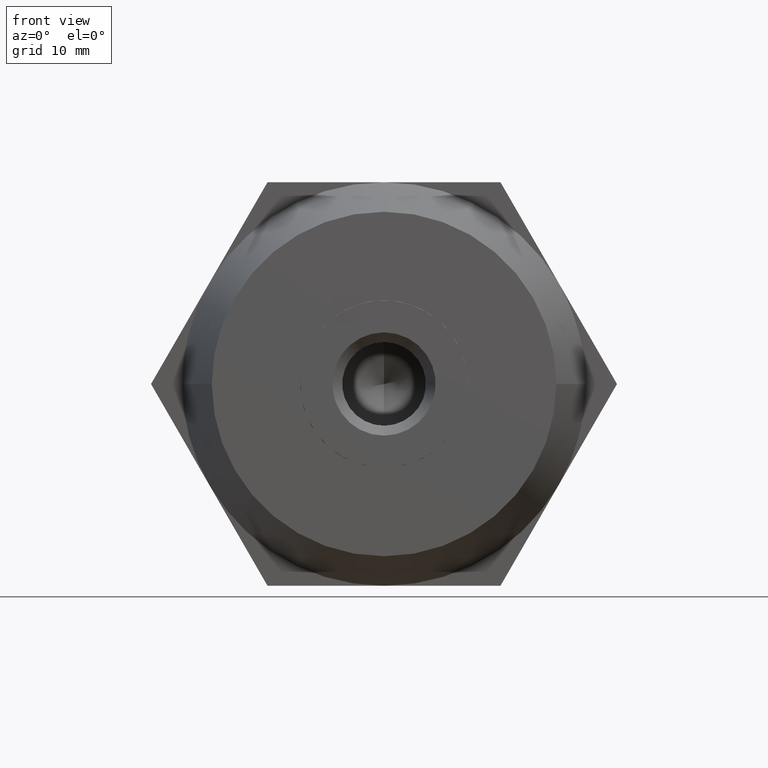
[diagram: clean part render]
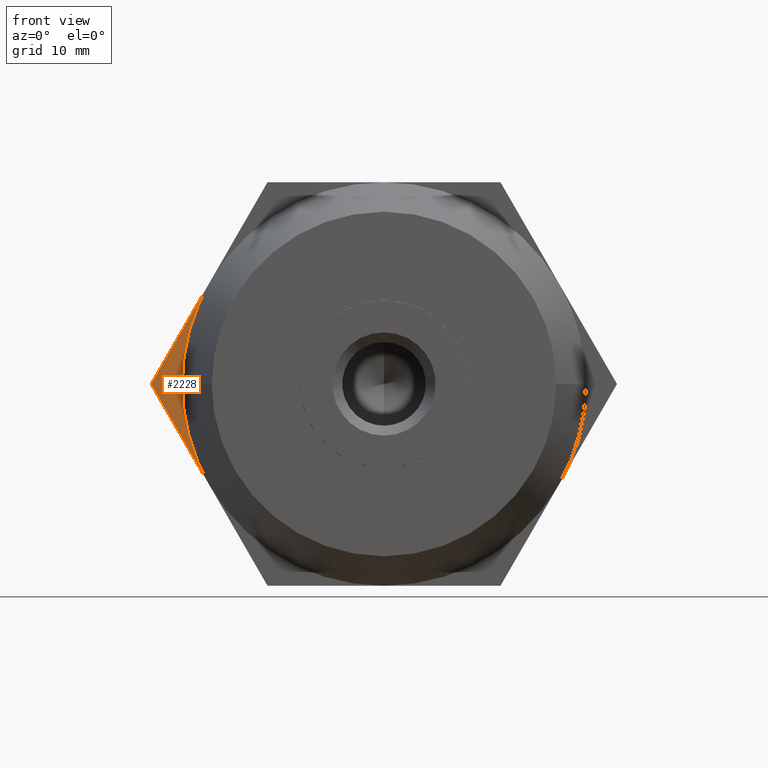
[diagram: same view with one face highlighted and labeled with its STEP entity id]
A machine part, front view. The second image highlights one B-rep face of the part: STEP entity #2228.
In plain terms, the highlighted planar face has unit normal (0, 1, 0).
Its self-contained STEP definition (entity closure, byte-faithful):
#8 = DIRECTION ( 'NONE',  ( -0.4999999999999998900, 0.0000000000000000000, 0.8660254037844387100 ) ) ;
#300 = CARTESIAN_POINT ( 'NONE',  ( -11.83568051838734000, -3.500000000000000000, -20.50000000000000000 ) ) ;
#308 = ORIENTED_EDGE ( 'NONE', *, *, #2621, .T. ) ;
#484 = EDGE_LOOP ( 'NONE', ( #2484, #308, #2175, #3763 ) ) ;
#733 = AXIS2_PLACEMENT_3D ( 'NONE', #3941, #3316, #2121 ) ;
#814 = FACE_OUTER_BOUND ( 'NONE', #484, .T. ) ;
#823 = LINE ( 'NONE', #300, #2776 ) ;
#1010 = CARTESIAN_POINT ( 'NONE',  ( -20.49999999999999600, -3.500000000000000000, 0.0000000000000000000 ) ) ;
#1153 = DIRECTION ( 'NONE',  ( 0.0000000000000000000, 1.000000000000000000, 0.0000000000000000000 ) ) ;
#1191 = VERTEX_POINT ( 'NONE', #1010 ) ;
#1210 = CARTESIAN_POINT ( 'NONE',  ( -17.75352077758099900, -3.500000000000000000, -10.25000000000000000 ) ) ;
#1223 = AXIS2_PLACEMENT_3D ( 'NONE', #2974, #1153, #1419 ) ;
#1419 = DIRECTION ( 'NONE',  ( 0.0000000000000000000, 0.0000000000000000000, 1.000000000000000000 ) ) ;
#1443 = CIRCLE ( 'NONE', #733, 20.50000000000000000 ) ;
#1524 = CARTESIAN_POINT ( 'NONE',  ( -17.75352077758099900, -3.500000000000000000, 10.25000000000000000 ) ) ;
#1539 = VECTOR ( 'NONE', #2628, 1000.000000000000000 ) ;
#1645 = LINE ( 'NONE', #1997, #1539 ) ;
#1997 = CARTESIAN_POINT ( 'NONE',  ( -23.67136103677464800, -3.500000000000000000, 1.213763299936740100E-016 ) ) ;
#2121 = DIRECTION ( 'NONE',  ( 0.0000000000000000000, 0.0000000000000000000, 1.000000000000000000 ) ) ;
#2175 = ORIENTED_EDGE ( 'NONE', *, *, #3585, .T. ) ;
#2228 = ADVANCED_FACE ( 'NONE', ( #814 ), #3253, .F. ) ;
#2484 = ORIENTED_EDGE ( 'NONE', *, *, #3022, .F. ) ;
#2621 = EDGE_CURVE ( 'NONE', #2743, #1191, #3967, .T. ) ;
#2628 = DIRECTION ( 'NONE',  ( 0.4999999999999998900, 0.0000000000000000000, 0.8660254037844387100 ) ) ;
#2656 = VERTEX_POINT ( 'NONE', #1524 ) ;
#2743 = VERTEX_POINT ( 'NONE', #1210 ) ;
#2751 = DIRECTION ( 'NONE',  ( 0.0000000000000000000, 1.000000000000000000, 0.0000000000000000000 ) ) ;
#2776 = VECTOR ( 'NONE', #8, 1000.000000000000000 ) ;
#2974 = CARTESIAN_POINT ( 'NONE',  ( 0.0000000000000000000, -3.500000000000000000, 0.0000000000000000000 ) ) ;
#3002 = AXIS2_PLACEMENT_3D ( 'NONE', #3332, #2751, #3340 ) ;
#3022 = EDGE_CURVE ( 'NONE', #2743, #3904, #823, .T. ) ;
#3078 = CARTESIAN_POINT ( 'NONE',  ( -23.67136103677464800, -3.500000000000000000, 1.213763299936740100E-016 ) ) ;
#3253 = PLANE ( 'NONE',  #1223 ) ;
#3316 = DIRECTION ( 'NONE',  ( 0.0000000000000000000, 1.000000000000000000, 0.0000000000000000000 ) ) ;
#3332 = CARTESIAN_POINT ( 'NONE',  ( 2.877919977996279900E-015, -3.500000000000000000, 4.564592615003799800E-016 ) ) ;
#3340 = DIRECTION ( 'NONE',  ( 0.0000000000000000000, 0.0000000000000000000, 1.000000000000000000 ) ) ;
#3369 = EDGE_CURVE ( 'NONE', #3904, #2656, #1645, .T. ) ;
#3585 = EDGE_CURVE ( 'NONE', #1191, #2656, #1443, .T. ) ;
#3763 = ORIENTED_EDGE ( 'NONE', *, *, #3369, .F. ) ;
#3904 = VERTEX_POINT ( 'NONE', #3078 ) ;
#3941 = CARTESIAN_POINT ( 'NONE',  ( 2.877919977996279900E-015, -3.500000000000000000, 4.564592615003799800E-016 ) ) ;
#3967 = CIRCLE ( 'NONE', #3002, 20.50000000000000000 ) ;